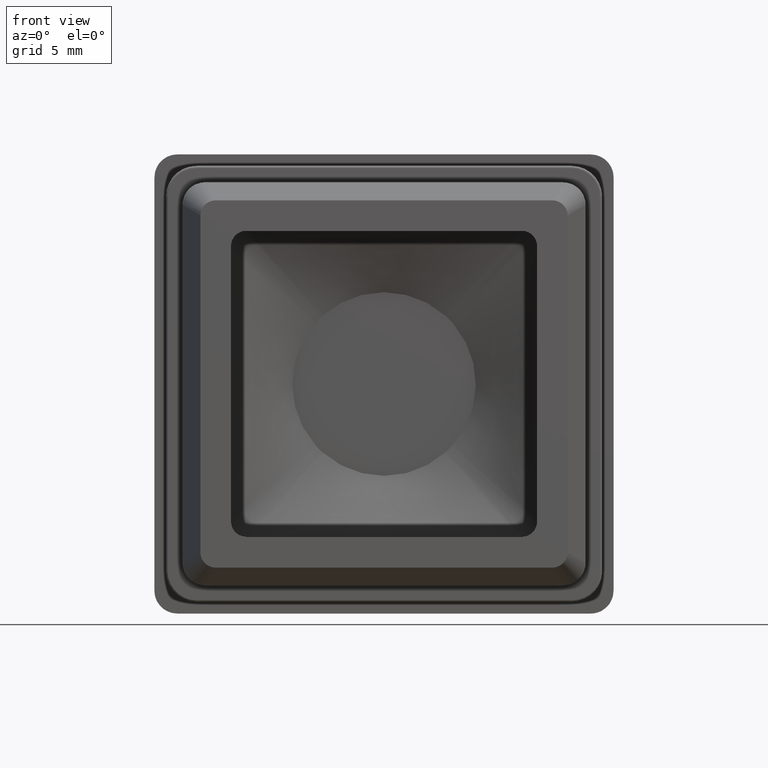
[diagram: clean part render]
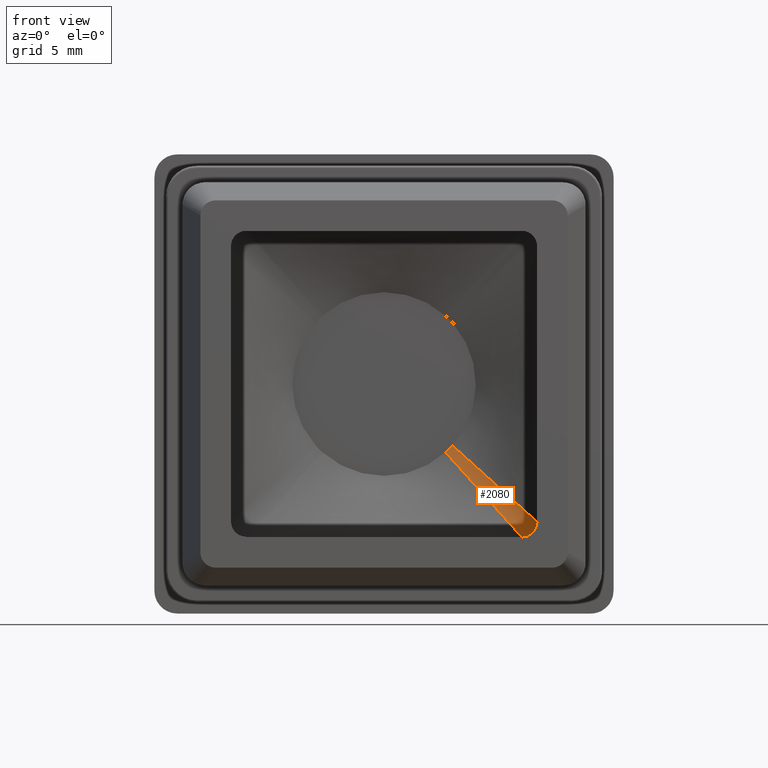
[diagram: same view with one face highlighted and labeled with its STEP entity id]
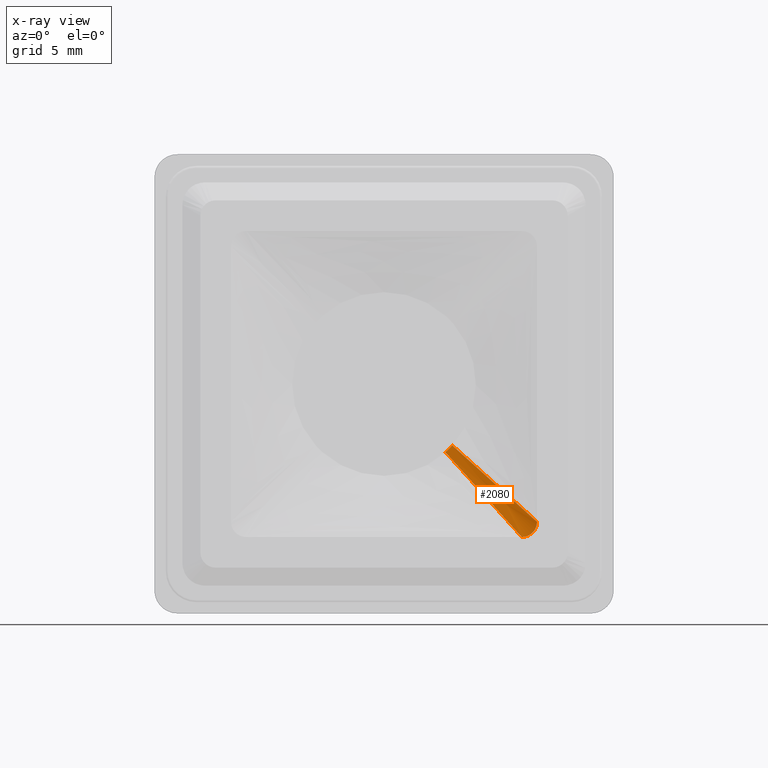
[diagram: x-ray of the same camera — body ghosted, the highlighted face saturated]
A machine part, front view. The second image highlights one B-rep face of the part: STEP entity #2080.
The next image is the same camera in x-ray: the body ghosted, the highlighted face saturated — about 0% of this face is hidden behind the body in this view.
In plain terms, the highlighted face is a freeform B-spline surface patch.
Its self-contained STEP definition (entity closure, byte-faithful):
#130=LINE('',#3352,#294);
#131=LINE('',#3375,#295);
#294=VECTOR('',#2500,7.71728653317443);
#295=VECTOR('',#2503,7.71728653317443);
#455=B_SPLINE_SURFACE_WITH_KNOTS('',3,3,((#3353,#3354,#3355,#3356),(#3357,
#3358,#3359,#3360),(#3361,#3362,#3363,#3364),(#3365,#3366,#3367,#3368),
(#3369,#3370,#3371,#3372)),.UNSPECIFIED.,.F.,.F.,.F.,(4,1,4),(4,4),(0.,
0.571428571428571,1.),(0.,1.),.UNSPECIFIED.);
#476=FACE_OUTER_BOUND('',#612,.T.);
#612=EDGE_LOOP('',(#1418,#1419,#1420,#1421));
#754=CIRCLE('',#2218,6.);
#759=CIRCLE('',#2223,1.);
#882=VERTEX_POINT('',#3157);
#883=VERTEX_POINT('',#3159);
#890=VERTEX_POINT('',#3350);
#891=VERTEX_POINT('',#3373);
#1075=EDGE_CURVE('',#882,#883,#754,.T.);
#1088=EDGE_CURVE('',#890,#882,#130,.T.);
#1089=EDGE_CURVE('',#891,#890,#759,.T.);
#1090=EDGE_CURVE('',#891,#883,#131,.T.);
#1418=ORIENTED_EDGE('',*,*,#1089,.F.);
#1419=ORIENTED_EDGE('',*,*,#1090,.T.);
#1420=ORIENTED_EDGE('',*,*,#1075,.F.);
#1421=ORIENTED_EDGE('',*,*,#1088,.F.);
#2080=ADVANCED_FACE('',(#476),#455,.T.);
#2218=AXIS2_PLACEMENT_3D('',#3160,#2482,#2483);
#2223=AXIS2_PLACEMENT_3D('',#3374,#2501,#2502);
#2482=DIRECTION('center_axis',(0.,-1.,0.));
#2483=DIRECTION('ref_axis',(-1.,0.,0.));
#2500=DIRECTION('',(-0.646109430928991,0.259158447908156,0.717899367698879));
#2501=DIRECTION('center_axis',(0.,1.,0.));
#2502=DIRECTION('ref_axis',(-1.11022302462516E-15,0.,-1.));
#2503=DIRECTION('',(-0.717899367698879,0.259158447908156,0.646109430928992));
#3157=CARTESIAN_POINT('',(4.0137883897347,2.,-4.459764877483));
#3159=CARTESIAN_POINT('',(4.459764877483,2.,-4.0137883897347));
#3160=CARTESIAN_POINT('Origin',(0.,2.,0.));
#3350=CARTESIAN_POINT('',(8.99999999999999,0.,-10.));
#3352=CARTESIAN_POINT('',(8.99999999999999,0.,-10.));
#3353=CARTESIAN_POINT('Ctrl Pts',(8.99999999999999,0.,-10.));
#3354=CARTESIAN_POINT('Ctrl Pts',(7.33792946324489,0.666666666666667,-8.153254959161));
#3355=CARTESIAN_POINT('Ctrl Pts',(5.67585892648979,1.33333333333333,-6.306509918322));
#3356=CARTESIAN_POINT('Ctrl Pts',(4.0137883897347,2.,-4.459764877483));
#3357=CARTESIAN_POINT('Ctrl Pts',(9.29919930034188,0.,-10.));
#3358=CARTESIAN_POINT('Ctrl Pts',(7.56674244104829,0.666666666666665,-8.12538885295791));
#3359=CARTESIAN_POINT('Ctrl Pts',(5.83558166477038,1.33333333333333,-6.25397325035721));
#3360=CARTESIAN_POINT('Ctrl Pts',(4.10312480547679,2.,-4.37936210331512));
#3361=CARTESIAN_POINT('Ctrl Pts',(9.81734313035779,0.,-9.74899016801296));
#3362=CARTESIAN_POINT('Ctrl Pts',(7.96353494512091,0.666666666666669,-7.91099537682957));
#3363=CARTESIAN_POINT('Ctrl Pts',(6.10904250359235,1.33333333333333,-6.07195297774559));
#3364=CARTESIAN_POINT('Ctrl Pts',(4.25523431835548,2.,-4.23395818656221));
#3365=CARTESIAN_POINT('Ctrl Pts',(10.,0.,-9.22439947525642));
#3366=CARTESIAN_POINT('Ctrl Pts',(8.13288336280745,0.666666666666666,-7.51001623406555));
#3367=CARTESIAN_POINT('Ctrl Pts',(6.26657943404963,1.33333333333333,-5.79517394273213));
#3368=CARTESIAN_POINT('Ctrl Pts',(4.39946279685709,2.,-4.08079070154127));
#3369=CARTESIAN_POINT('Ctrl Pts',(10.,0.,-9.));
#3370=CARTESIAN_POINT('Ctrl Pts',(8.153254959161,0.666666666666667,-7.3379294632449));
#3371=CARTESIAN_POINT('Ctrl Pts',(6.306509918322,1.33333333333333,-5.6758589264898));
#3372=CARTESIAN_POINT('Ctrl Pts',(4.459764877483,2.,-4.0137883897347));
#3373=CARTESIAN_POINT('',(10.,0.,-9.));
#3374=CARTESIAN_POINT('Origin',(9.,0.,-9.));
#3375=CARTESIAN_POINT('',(10.,0.,-9.));